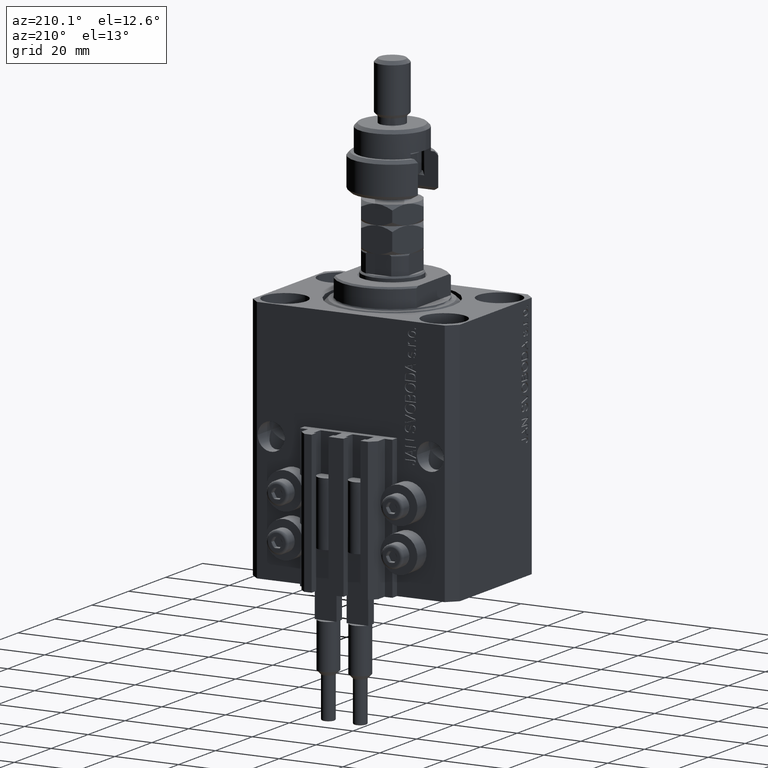
[diagram: clean part render]
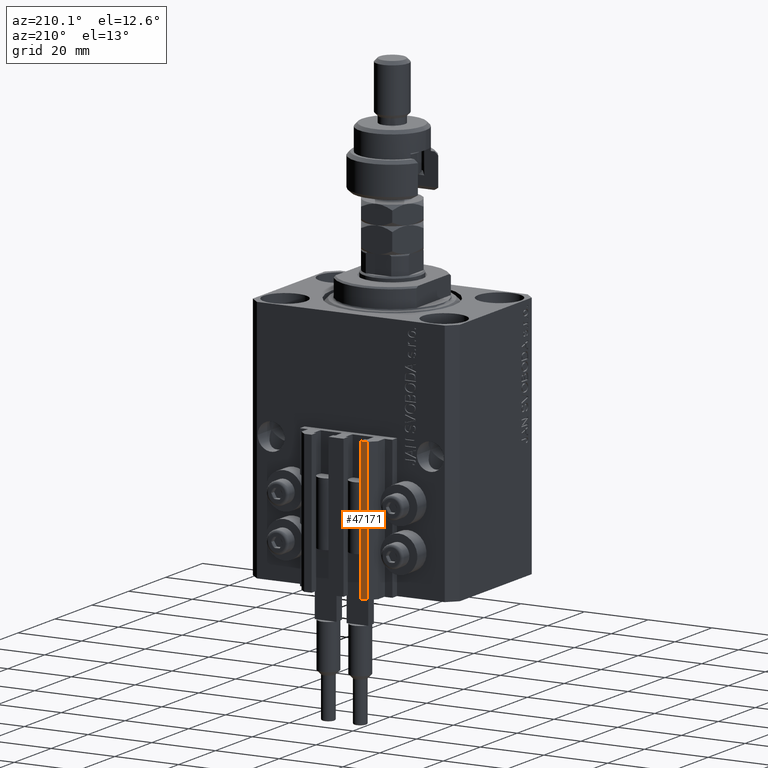
[diagram: same view with one face highlighted and labeled with its STEP entity id]
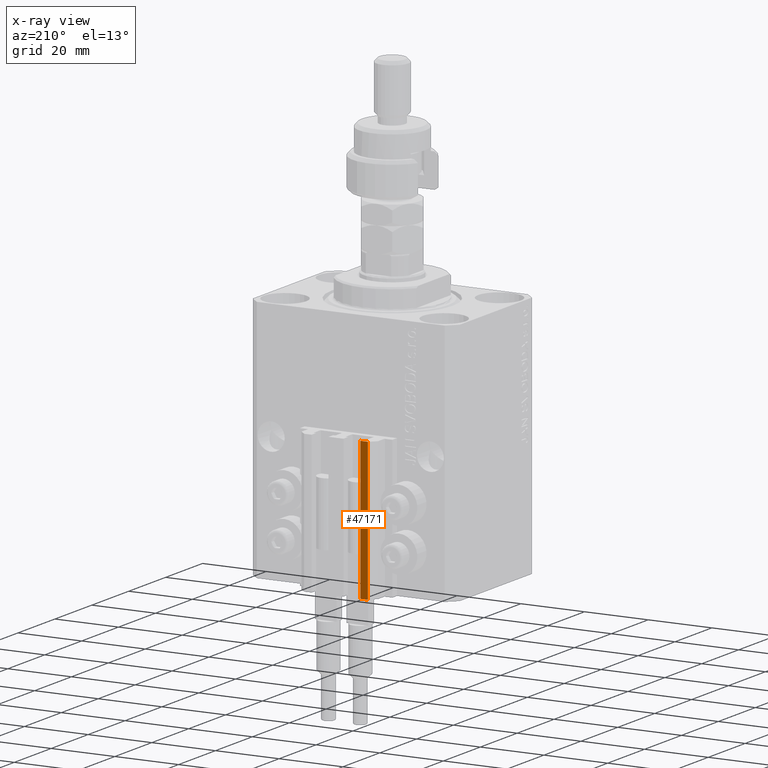
[diagram: x-ray of the same camera — body ghosted, the highlighted face saturated]
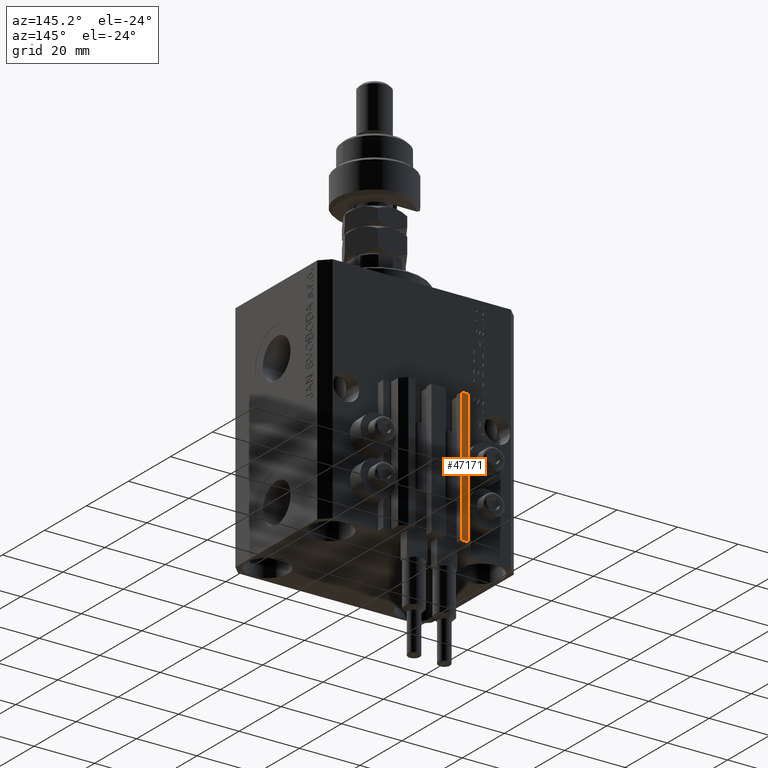
[diagram: same view with one face highlighted and labeled with its STEP entity id]
A machine part, auxiliary view. The second image highlights one B-rep face of the part: STEP entity #47171.
The next image is the same camera in x-ray: the body ghosted, the highlighted face saturated — about 0% of this face is hidden behind the body in this view.
A second angle (auxiliary view) of the same face is appended — the face is thin or edge-on in the first view.
In plain terms, the highlighted planar face has unit normal (0, 1, 0).
Its self-contained STEP definition (entity closure, byte-faithful):
#559 = LINE ( 'NONE', #15955, #45525 ) ;
#812 = VECTOR ( 'NONE', #22379, 1000.000000000000000 ) ;
#2610 = LINE ( 'NONE', #17513, #812 ) ;
#4923 = DIRECTION ( 'NONE',  ( -1.000000000000000000, 1.476360405086644852E-15, 0.000000000000000000 ) ) ;
#5034 = VECTOR ( 'NONE', #4923, 1000.000000000000000 ) ;
#6697 = ORIENTED_EDGE ( 'NONE', *, *, #38304, .F. ) ;
#7140 = ORIENTED_EDGE ( 'NONE', *, *, #9113, .F. ) ;
#8395 = ORIENTED_EDGE ( 'NONE', *, *, #39143, .T. ) ;
#8966 = VERTEX_POINT ( 'NONE', #17882 ) ;
#9113 = EDGE_CURVE ( 'NONE', #32289, #8966, #2610, .T. ) ;
#9347 = AXIS2_PLACEMENT_3D ( 'NONE', #41051, #25630, #10462 ) ;
#10462 = DIRECTION ( 'NONE',  ( -1.000000000000000000, 1.476360405086644852E-15, 0.000000000000000000 ) ) ;
#14400 = EDGE_LOOP ( 'NONE', ( #6697, #7140, #25295, #8395 ) ) ;
#14474 = VERTEX_POINT ( 'NONE', #48366 ) ;
#15955 = CARTESIAN_POINT ( 'NONE',  ( -7.650000000000000355, 30.49999999999948486, -77.00000000000000000 ) ) ;
#15970 = CARTESIAN_POINT ( 'NONE',  ( -10.00000000000000000, 30.49999999999948841, -77.00000000000000000 ) ) ;
#17513 = CARTESIAN_POINT ( 'NONE',  ( -7.650000000000000355, 30.49999999999948486, -77.00000000000000000 ) ) ;
#17882 = CARTESIAN_POINT ( 'NONE',  ( -7.650000000000000355, 30.49999999999948486, -33.00000000000000000 ) ) ;
#19515 = EDGE_CURVE ( 'NONE', #32289, #29398, #559, .T. ) ;
#19818 = DIRECTION ( 'NONE',  ( -1.000000000000000000, 1.476360405086644852E-15, 0.000000000000000000 ) ) ;
#22379 = DIRECTION ( 'NONE',  ( 0.000000000000000000, 0.000000000000000000, 1.000000000000000000 ) ) ;
#25295 = ORIENTED_EDGE ( 'NONE', *, *, #19515, .T. ) ;
#25630 = DIRECTION ( 'NONE',  ( 1.476360405086644852E-15, 1.000000000000000000, -0.000000000000000000 ) ) ;
#28567 = CARTESIAN_POINT ( 'NONE',  ( -10.00000000000000000, 30.49999999999948841, -77.00000000000000000 ) ) ;
#29398 = VERTEX_POINT ( 'NONE', #15970 ) ;
#31390 = DIRECTION ( 'NONE',  ( 0.000000000000000000, 0.000000000000000000, 1.000000000000000000 ) ) ;
#31903 = LINE ( 'NONE', #28567, #48474 ) ;
#32289 = VERTEX_POINT ( 'NONE', #37667 ) ;
#37667 = CARTESIAN_POINT ( 'NONE',  ( -7.650000000000000355, 30.49999999999948486, -77.00000000000000000 ) ) ;
#37947 = FACE_OUTER_BOUND ( 'NONE', #14400, .T. ) ;
#38304 = EDGE_CURVE ( 'NONE', #8966, #14474, #47859, .T. ) ;
#39143 = EDGE_CURVE ( 'NONE', #29398, #14474, #31903, .T. ) ;
#41051 = CARTESIAN_POINT ( 'NONE',  ( -7.650000000000000355, 30.49999999999948486, -77.00000000000000000 ) ) ;
#43223 = CARTESIAN_POINT ( 'NONE',  ( -7.650000000000000355, 30.49999999999948486, -33.00000000000000000 ) ) ;
#45525 = VECTOR ( 'NONE', #19818, 1000.000000000000000 ) ;
#45697 = PLANE ( 'NONE',  #9347 ) ;
#47171 = ADVANCED_FACE ( 'NONE', ( #37947 ), #45697, .T. ) ;
#47859 = LINE ( 'NONE', #43223, #5034 ) ;
#48366 = CARTESIAN_POINT ( 'NONE',  ( -10.00000000000000000, 30.49999999999948841, -33.00000000000000000 ) ) ;
#48474 = VECTOR ( 'NONE', #31390, 1000.000000000000000 ) ;